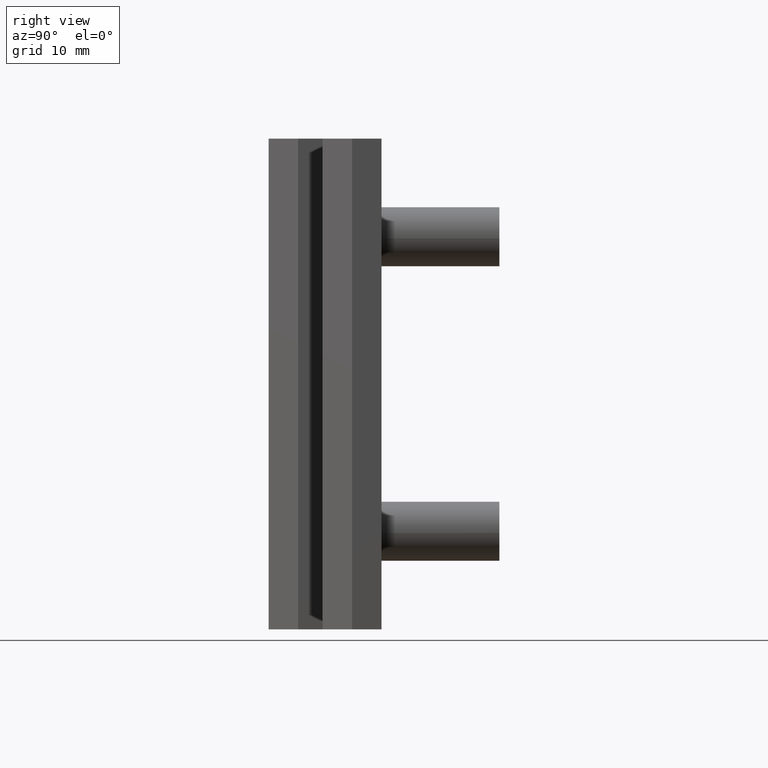
[diagram: clean part render]
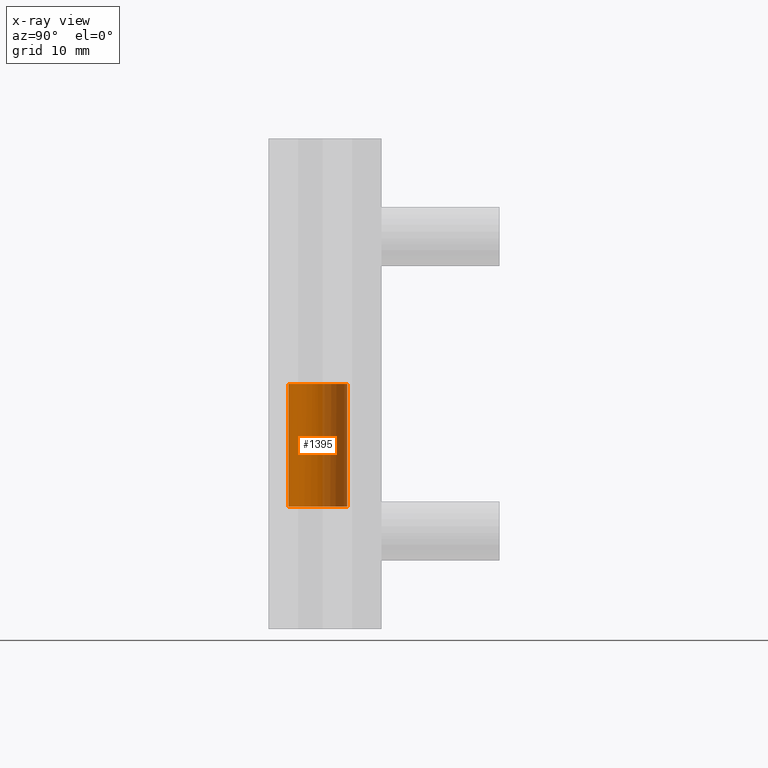
[diagram: x-ray — body ghosted, one internal face saturated and labeled with its STEP entity id]
A machine part, right view, then the same camera in x-ray: the body is ghosted and one INTERNAL B-rep face — a face not visible from any outside direction — is saturated and labeled: STEP entity #1395.
In plain terms, the highlighted face is a freeform B-spline surface patch.
Its self-contained STEP definition (entity closure, byte-faithful):
#1230=CARTESIAN_POINT('',(-0.372384006283378,-2.976798641471126,24.999999999999989));
#1231=VERTEX_POINT('',#1230);
#1245=CARTESIAN_POINT('',(-0.372384006330487,-2.976798641465233,12.500000000000000));
#1246=VERTEX_POINT('',#1245);
#1247=CARTESIAN_POINT('',(-0.372384006283378,-2.976798641471126,24.999999999999989));
#1248=CARTESIAN_POINT('',(-0.372384006330487,-2.976798641465233,12.500000000000000));
#1249=QUASI_UNIFORM_CURVE('',1,(#1247,#1248),.UNSPECIFIED.,.F.,.U.);
#1250=EDGE_CURVE('',#1231,#1246,#1249,.T.);
#1267=CARTESIAN_POINT('',(0.026179606647931,2.999885769191180,12.500000000000000));
#1268=VERTEX_POINT('',#1267);
#1284=CARTESIAN_POINT('',(0.026179606635482,2.999885769191288,25.0));
#1285=VERTEX_POINT('',#1284);
#1286=CARTESIAN_POINT('',(0.026179606635482,2.999885769191288,25.0));
#1287=CARTESIAN_POINT('',(0.026179606647931,2.999885769191180,12.500000000000000));
#1288=QUASI_UNIFORM_CURVE('',1,(#1286,#1287),.UNSPECIFIED.,.F.,.U.);
#1289=EDGE_CURVE('',#1285,#1268,#1288,.T.);
#1309=CARTESIAN_POINT('',(0.026179606495122,2.999885769192513,25.312500000000000));
#1310=CARTESIAN_POINT('',(3.026065375687634,2.973706162697392,25.312500000000007));
#1311=CARTESIAN_POINT('',(2.999885769192513,-0.026179606495122,25.312500000000000));
#1312=CARTESIAN_POINT('',(2.973706162697392,-3.026065375687634,25.312500000000007));
#1313=CARTESIAN_POINT('',(-0.026179606495122,-2.999885769192513,25.312500000000000));
#1314=CARTESIAN_POINT('',(-0.199950476874521,-2.998369293780826,25.312500000000000));
#1315=CARTESIAN_POINT('',(-0.372384006239488,-2.976798641476615,25.312500000000000));
#1316=CARTESIAN_POINT('',(0.026179606495122,2.999885769192513,12.179687500000000));
#1317=CARTESIAN_POINT('',(3.026065375687634,2.973706162697392,12.179687499999998));
#1318=CARTESIAN_POINT('',(2.999885769192513,-0.026179606495122,12.179687500000000));
#1319=CARTESIAN_POINT('',(2.973706162697392,-3.026065375687634,12.179687499999998));
#1320=CARTESIAN_POINT('',(-0.026179606495122,-2.999885769192513,12.179687500000000));
#1321=CARTESIAN_POINT('',(-0.199950476874521,-2.998369293780826,12.179687499999996));
#1322=CARTESIAN_POINT('',(-0.372384006239488,-2.976798641476615,12.179687499999996));
#1330=(BOUNDED_SURFACE()B_SPLINE_SURFACE(2,1,((#1309,#1316),(#1310,#1317),(#1311,#1318),(#1312,#1319),(#1313,#1320),(#1314,#1321),(#1315,#1322)),.UNSPECIFIED.,.F.,.F.,.U.)B_SPLINE_SURFACE_WITH_KNOTS((3,2,2,3),(2,2),(0.0,4.970562748477139,9.941125496954278,10.338770516832451),(0.0,13.132812500000011),.UNSPECIFIED.)GEOMETRIC_REPRESENTATION_ITEM()RATIONAL_B_SPLINE_SURFACE(((1.0,1.0),(0.707106781186548,0.707106781186548),(1.0,1.0),(0.707106781186548,0.707106781186548),(1.0,1.0),(0.976568542494924,0.976568542494924),(0.956886118190660,0.956886118190660)))REPRESENTATION_ITEM('')SURFACE());
#1331=CARTESIAN_POINT('',(3.0,0.0,25.0));
#1332=VERTEX_POINT('',#1331);
#1333=CARTESIAN_POINT('',(-0.372384006283378,-2.976798641471126,24.999999999999993));
#1334=CARTESIAN_POINT('',(-0.186914782644887,-3.000000000000001,25.0));
#1335=CARTESIAN_POINT('',(0.0,-3.0,25.0));
#1336=CARTESIAN_POINT('',(3.0,-3.0,25.0));
#1337=CARTESIAN_POINT('',(3.0,0.0,25.0));
#1345=(BOUNDED_CURVE()B_SPLINE_CURVE(2,(#1333,#1334,#1335,#1336,#1337),.UNSPECIFIED.,.F.,.U.)B_SPLINE_CURVE_WITH_KNOTS((3,2,3),(0.228526071024326,0.250000000000000,0.500000000000000),.UNSPECIFIED.)CURVE()GEOMETRIC_REPRESENTATION_ITEM()RATIONAL_B_SPLINE_CURVE((0.954005430265068,0.974841727286973,1.0,0.707106781186548,1.0))REPRESENTATION_ITEM(''));
#1346=EDGE_CURVE('',#1231,#1332,#1345,.T.);
#1347=ORIENTED_EDGE('',*,*,#1346,.T.);
#1348=CARTESIAN_POINT('',(3.0,0.0,25.0));
#1349=CARTESIAN_POINT('',(3.0,2.973933631506619,24.999999999999993));
#1350=CARTESIAN_POINT('',(0.026179606635482,2.999885769191288,24.999999999999996));
#1358=(BOUNDED_CURVE()B_SPLINE_CURVE(2,(#1348,#1349,#1350),.UNSPECIFIED.,.F.,.U.)B_SPLINE_CURVE_WITH_KNOTS((3,3),(0.500000000000000,0.748460105648529),.UNSPECIFIED.)CURVE()GEOMETRIC_REPRESENTATION_ITEM()RATIONAL_B_SPLINE_CURVE((1.0,0.708910879639487,0.996414028062258))REPRESENTATION_ITEM(''));
#1359=EDGE_CURVE('',#1332,#1285,#1358,.T.);
#1360=ORIENTED_EDGE('',*,*,#1359,.T.);
#1361=ORIENTED_EDGE('',*,*,#1289,.T.);
#1362=CARTESIAN_POINT('',(3.0,0.0,12.500000000000000));
#1363=VERTEX_POINT('',#1362);
#1364=CARTESIAN_POINT('',(0.026179606647931,2.999885769191180,12.499999999999996));
#1365=CARTESIAN_POINT('',(3.000000000000000,2.973933631481948,12.499999999999998));
#1366=CARTESIAN_POINT('',(3.0,0.0,12.500000000000000));
#1374=(BOUNDED_CURVE()B_SPLINE_CURVE(2,(#1364,#1365,#1366),.UNSPECIFIED.,.F.,.U.)B_SPLINE_CURVE_WITH_KNOTS((3,3),(0.751539894352932,1.0),.UNSPECIFIED.)CURVE()GEOMETRIC_REPRESENTATION_ITEM()RATIONAL_B_SPLINE_CURVE((0.996414028058876,0.708910879641199,1.0))REPRESENTATION_ITEM(''));
#1375=EDGE_CURVE('',#1268,#1363,#1374,.T.);
#1376=ORIENTED_EDGE('',*,*,#1375,.T.);
#1377=CARTESIAN_POINT('',(3.0,0.0,12.500000000000000));
#1378=CARTESIAN_POINT('',(3.0,-3.0,12.500000000000000));
#1379=CARTESIAN_POINT('',(0.0,-3.0,12.500000000000000));
#1380=CARTESIAN_POINT('',(-0.186914782692547,-3.000000000000000,12.500000000000005));
#1381=CARTESIAN_POINT('',(-0.372384006330487,-2.976798641465233,12.500000000000005));
#1389=(BOUNDED_CURVE()B_SPLINE_CURVE(2,(#1377,#1378,#1379,#1380,#1381),.UNSPECIFIED.,.F.,.U.)B_SPLINE_CURVE_WITH_KNOTS((3,2,3),(0.0,0.250000000000000,0.271473928981012),.UNSPECIFIED.)CURVE()GEOMETRIC_REPRESENTATION_ITEM()RATIONAL_B_SPLINE_CURVE((1.0,0.707106781186548,1.0,0.974841727280720,0.954005430254709))REPRESENTATION_ITEM(''));
#1390=EDGE_CURVE('',#1363,#1246,#1389,.T.);
#1391=ORIENTED_EDGE('',*,*,#1390,.T.);
#1392=ORIENTED_EDGE('',*,*,#1250,.F.);
#1393=EDGE_LOOP('',(#1347,#1360,#1361,#1376,#1391,#1392));
#1394=FACE_OUTER_BOUND('',#1393,.T.);
#1395=ADVANCED_FACE('',(#1394),#1330,.F.);